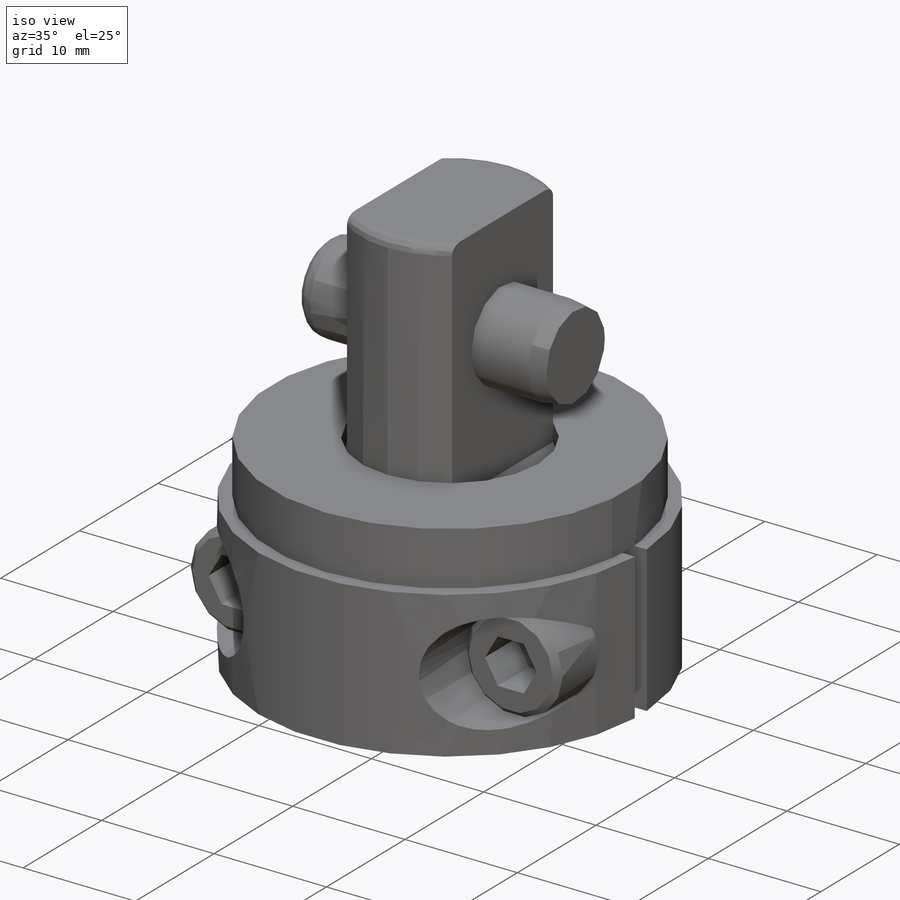
[diagram: iso view]
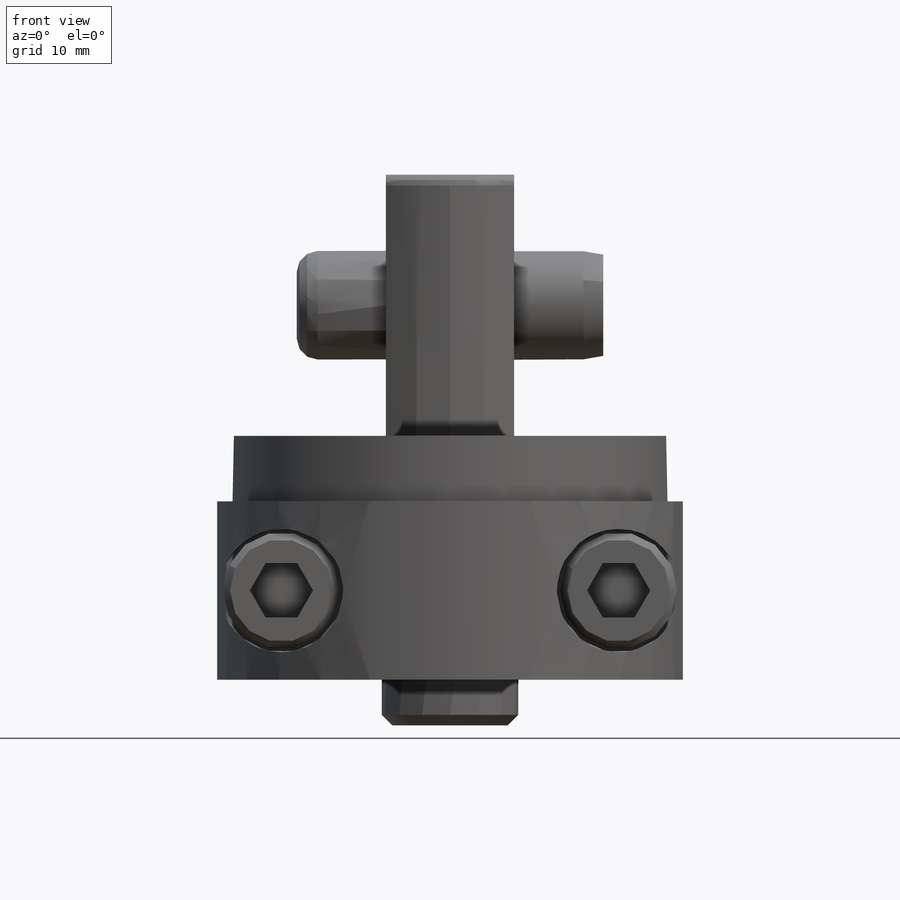
[diagram: front view]
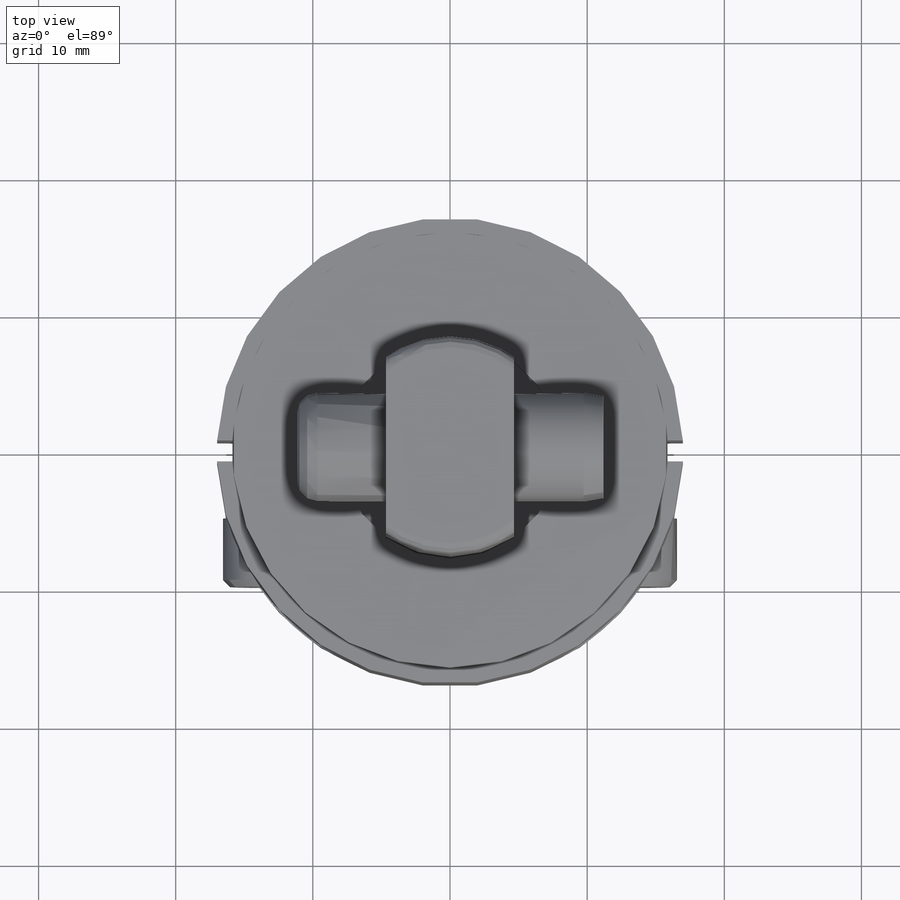
[diagram: top view]
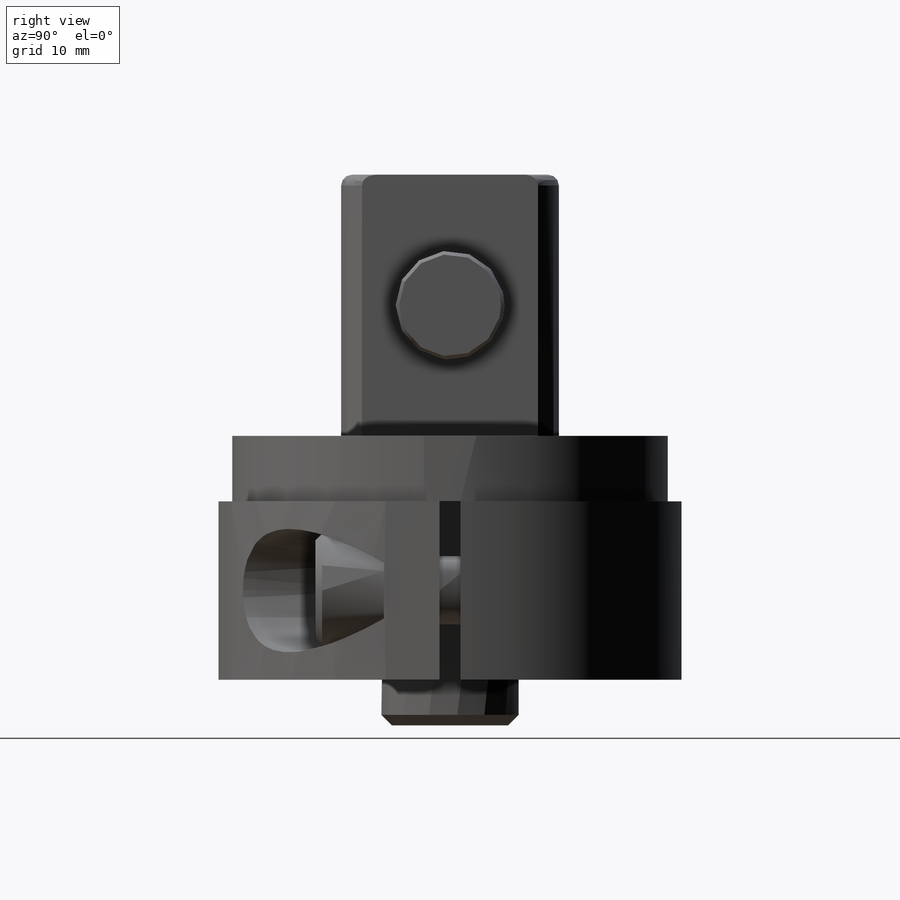
[diagram: right view]
SOLIDWORKS PART (.sldprt)
format: sldprt  version: not decoded by parser v0  size: 333,312 bytes
history: native  units: mm
features: sketch x10, extrude x5, cut_extrude x4, chamfer x3, fillet x2, material x1, revolve x1 (+13 scaffold rows collapsed)
feature tree (39):
  scaffold x13  (default folders/planes/origin — collapsed)
  material  "Alloy Steel"
  sketch  "Sketch1"  dims[D1=40.1574mm D2=11.176mm D3=10.0076mm D4=15.875mm D5=1.3462mm]
  revolve  "Revolve1"  Angle=360deg
  fillet  "Fillet1"  Radius=0.7874mm
  sketch  "Sketch2"  dims[D1=9.3472mm D2=20.6248mm]
  cut_extrude  "Cut-Extrude1"  Depth=0mm
  sketch  "Sketch3"  dims[D1=7.9248mm]
  cut_extrude  "Cut-Extrude2"  Depth=2.54mm
  chamfer  "Chamfer1"  Distance=0.762mm Angle=45deg
  sketch  "Sketch4"  dims[D1=~7.94258mm D2=19.4564mm]
  extrude  "Extrude1"  Depth=22.352mm
  chamfer  "Chamfer2"  Distance=0.254mm Angle=80deg
  fillet  "Fillet2"  Radius=1.524mm
  sketch  "Sketch5"  dims[D2=17.0mm D1=1.524mm]
  extrude  "Extrude2"  Depth=6.5mm
  sketch  "Sketch6"  dims[D1=8.9916mm D2=24.5872mm D3=6.5mm]
  cut_extrude  "Cut-Extrude3"  [1 undecoded]
  sketch  "Sketch7"  dims[D1=8.509mm]
  extrude  "Extrude3"  Depth=5.0038mm
  chamfer  "Chamfer3"  Distance=0.508mm Angle=45deg
  sketch  "Sketch8"  dims[D1=4.7625mm D2=3.9878mm]
  cut_extrude  "Cut-Extrude4"  Depth=3.9878mm
  sketch  "Sketch10"  dims[D1=5.0038mm]
  extrude  "Extrude4"  Depth=0mm
  sketch  "Sketch11"  dims[D1=31.75mm D2=15.875mm]
  extrude  "Extrude5"  Depth=4.774946mm
decode coverage: 24 of 25 modeling features carry decoded parameters
note: ~ marks probable driven/reference dimensions
note: 1 parameter value undecoded
note: suppression state not decoded; provenance and decode notes live in map.json
